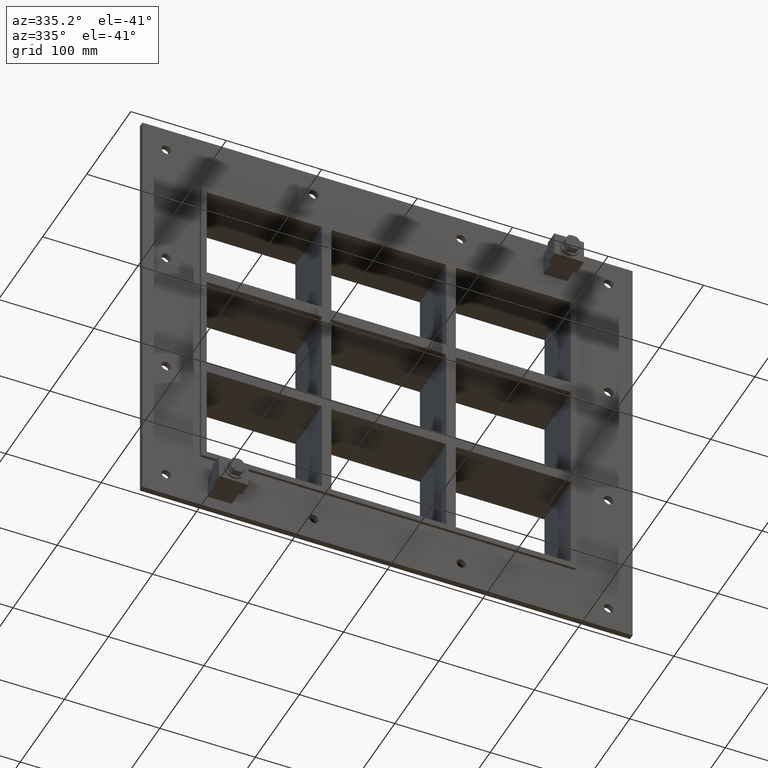
[diagram: clean part render]
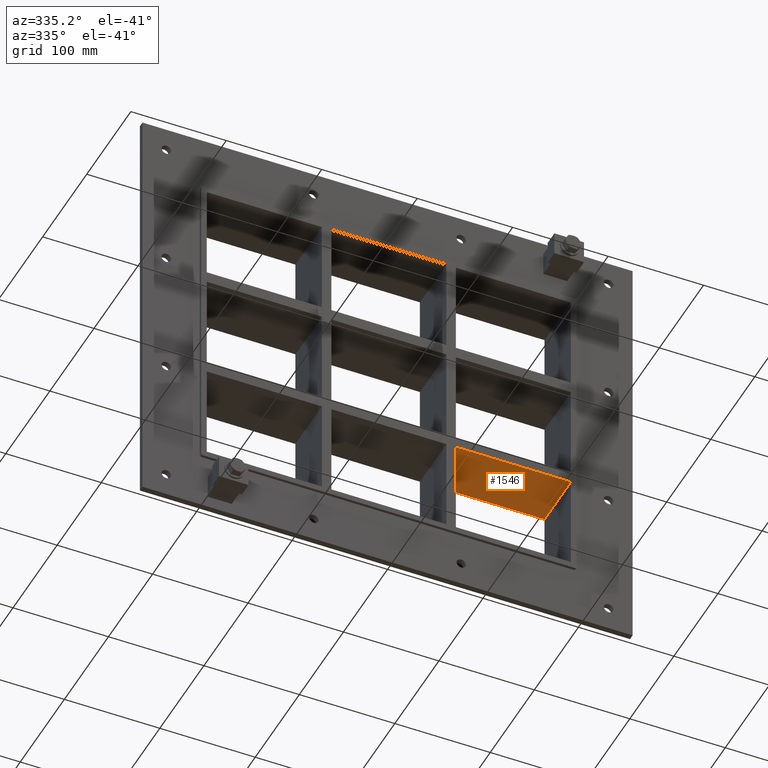
[diagram: same view with one face highlighted and labeled with its STEP entity id]
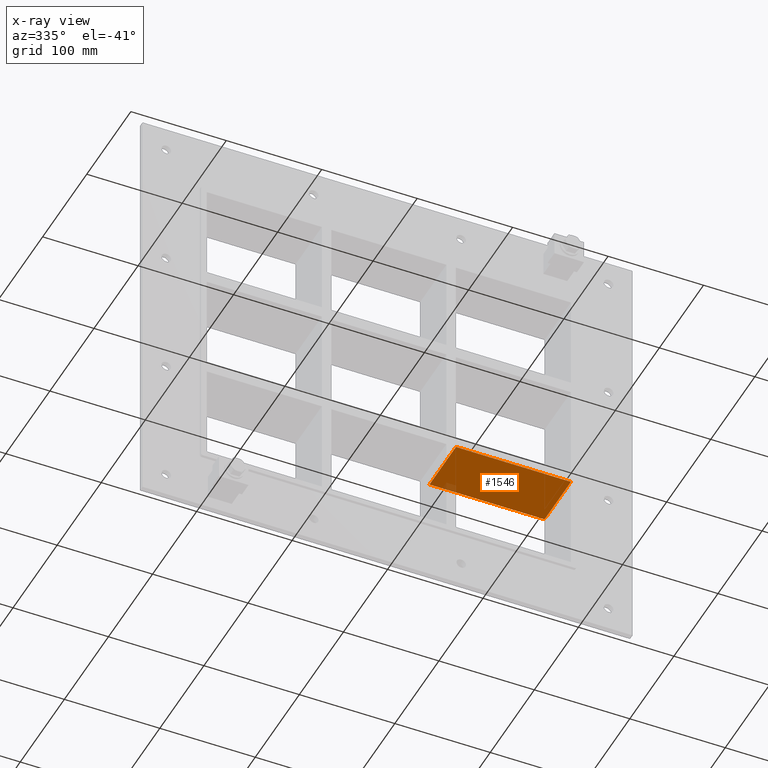
[diagram: x-ray of the same camera — body ghosted, the highlighted face saturated]
A machine part, auxiliary view. The second image highlights one B-rep face of the part: STEP entity #1546.
The next image is the same camera in x-ray: the body ghosted, the highlighted face saturated — about 2% of this face is hidden behind the body in this view.
In plain terms, the highlighted planar face has unit normal (0, 0, -1).
Its self-contained STEP definition (entity closure, byte-faithful):
#1121=CARTESIAN_POINT('',(190.7500000000073,57.0,-62.500000000011006));
#1122=VERTEX_POINT('',#1121);
#1129=CARTESIAN_POINT('',(70.250000000003638,57.0,-62.50000000001112));
#1130=VERTEX_POINT('',#1129);
#1131=CARTESIAN_POINT('',(190.75000000000728,57.0,-62.500000000011006));
#1132=DIRECTION('',(-1.0,0.0,0.0));
#1133=VECTOR('',#1132,120.50000000000364);
#1134=LINE('',#1131,#1133);
#1135=EDGE_CURVE('',#1122,#1130,#1134,.T.);
#1230=CARTESIAN_POINT('',(70.250000000003638,-3.0,-62.50000000001112));
#1231=VERTEX_POINT('',#1230);
#1232=CARTESIAN_POINT('',(70.250000000003638,-3.0,-62.50000000001112));
#1233=DIRECTION('',(0.0,1.0,0.0));
#1234=VECTOR('',#1233,60.0);
#1235=LINE('',#1232,#1234);
#1236=EDGE_CURVE('',#1231,#1130,#1235,.T.);
#1478=CARTESIAN_POINT('',(190.75000000000728,-3.0,-62.500000000011006));
#1479=VERTEX_POINT('',#1478);
#1480=CARTESIAN_POINT('',(190.75000000000728,-3.0,-62.500000000011006));
#1481=DIRECTION('',(-1.0,0.0,0.0));
#1482=VECTOR('',#1481,120.50000000000364);
#1483=LINE('',#1480,#1482);
#1484=EDGE_CURVE('',#1479,#1231,#1483,.T.);
#1530=CARTESIAN_POINT('',(190.75000000000728,-3.0,-62.500000000011006));
#1531=DIRECTION('',(0.0,0.0,-1.0));
#1532=DIRECTION('',(-1.0,0.0,0.0));
#1533=AXIS2_PLACEMENT_3D('',#1530,#1531,#1532);
#1534=PLANE('',#1533);
#1535=ORIENTED_EDGE('',*,*,#1236,.T.);
#1536=ORIENTED_EDGE('',*,*,#1135,.F.);
#1537=CARTESIAN_POINT('',(190.75000000000003,-3.0,-62.500000000011013));
#1538=DIRECTION('',(0.0,1.0,0.0));
#1539=VECTOR('',#1538,60.000000000000007);
#1540=LINE('',#1537,#1539);
#1541=EDGE_CURVE('',#1479,#1122,#1540,.T.);
#1542=ORIENTED_EDGE('',*,*,#1541,.F.);
#1543=ORIENTED_EDGE('',*,*,#1484,.T.);
#1544=EDGE_LOOP('',(#1535,#1536,#1542,#1543));
#1545=FACE_OUTER_BOUND('',#1544,.T.);
#1546=ADVANCED_FACE('',(#1545),#1534,.T.);